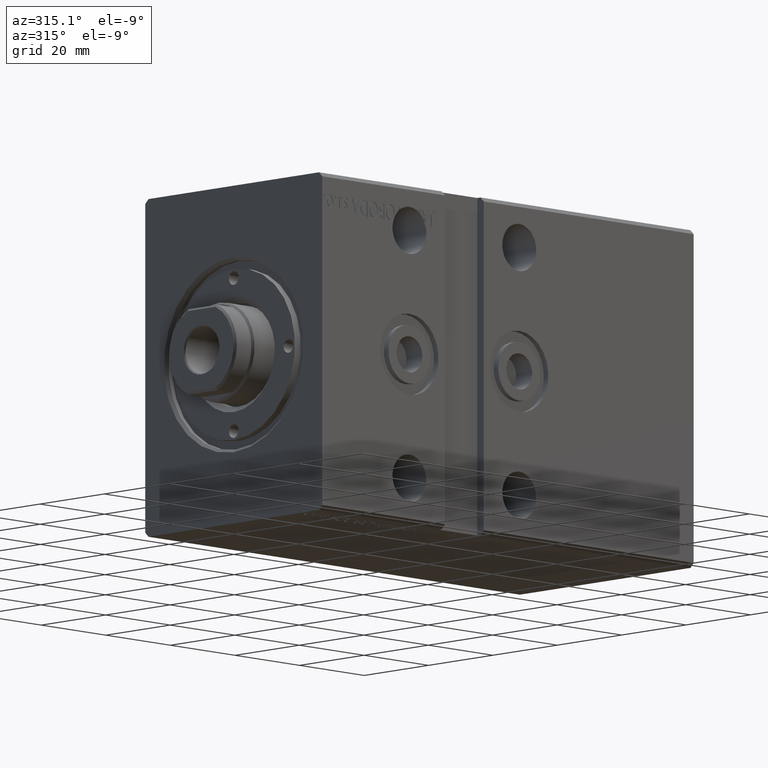
[diagram: clean part render]
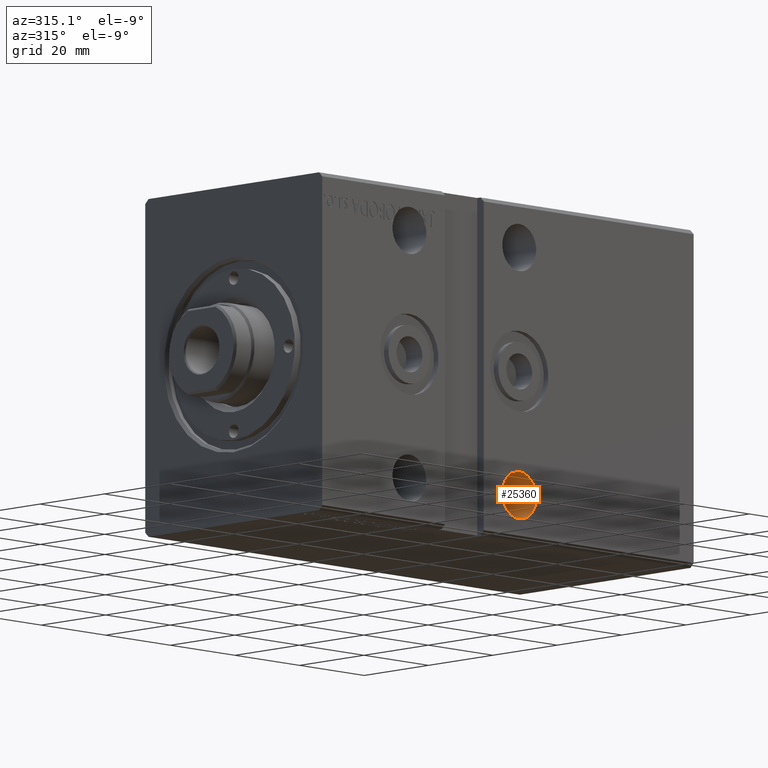
[diagram: same view with one face highlighted and labeled with its STEP entity id]
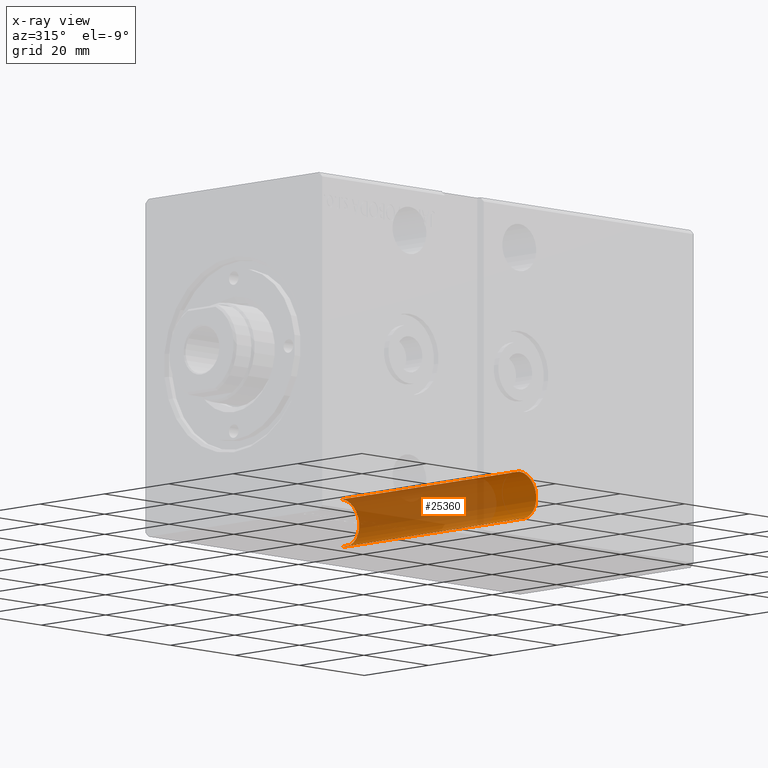
[diagram: x-ray of the same camera — body ghosted, the highlighted face saturated]
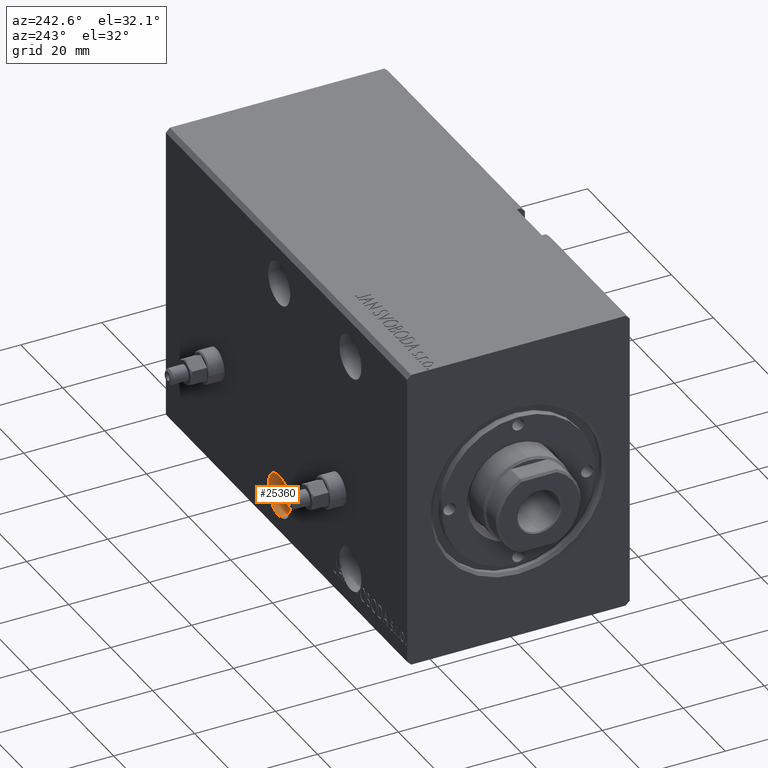
[diagram: same view with one face highlighted and labeled with its STEP entity id]
A machine part, auxiliary view. The second image highlights one B-rep face of the part: STEP entity #25360.
The next image is the same camera in x-ray: the body ghosted, the highlighted face saturated — about 77% of this face is hidden behind the body in this view.
A second angle (auxiliary view) of the same face is appended — the face is thin or edge-on in the first view.
In plain terms, the highlighted cylindrical surface (edge-blend (fillet) strip) has radius 5.25 mm, axis along (-0, -1, -0).
Its self-contained STEP definition (entity closure, byte-faithful):
#2926 = LINE ( 'NONE', #9265, #39934 ) ;
#4147 = EDGE_CURVE ( 'NONE', #26338, #28202, #17678, .T. ) ;
#4935 = DIRECTION ( 'NONE',  ( -0.000000000000000000, -1.000000000000000000, -5.507058653894626469E-17 ) ) ;
#5047 = DIRECTION ( 'NONE',  ( 0.000000000000000000, 0.000000000000000000, 1.000000000000000000 ) ) ;
#5855 = VERTEX_POINT ( 'NONE', #8342 ) ;
#7110 = EDGE_CURVE ( 'NONE', #26338, #5855, #31037, .T. ) ;
#8342 = CARTESIAN_POINT ( 'NONE',  ( 61.00000000000000711, 27.50000000000003197, -22.25000000000000355 ) ) ;
#8729 = CARTESIAN_POINT ( 'NONE',  ( 61.00000000000000711, 27.50000000000003197, -27.50000000000000000 ) ) ;
#9180 = EDGE_CURVE ( 'NONE', #5855, #10460, #2926, .T. ) ;
#9265 = CARTESIAN_POINT ( 'NONE',  ( 61.00000000000000711, 27.50000000000003197, -22.25000000000000355 ) ) ;
#10460 = VERTEX_POINT ( 'NONE', #21002 ) ;
#11895 = FACE_OUTER_BOUND ( 'NONE', #25651, .T. ) ;
#12860 = DIRECTION ( 'NONE',  ( 0.000000000000000000, 0.000000000000000000, -1.000000000000000000 ) ) ;
#13059 = CARTESIAN_POINT ( 'NONE',  ( 61.00000000000000711, 27.50000000000003197, -27.50000000000000000 ) ) ;
#13820 = ORIENTED_EDGE ( 'NONE', *, *, #7110, .F. ) ;
#15568 = AXIS2_PLACEMENT_3D ( 'NONE', #13059, #16843, #12860 ) ;
#16843 = DIRECTION ( 'NONE',  ( 0.000000000000000000, -1.000000000000000000, -5.507058653894625853E-17 ) ) ;
#17678 = LINE ( 'NONE', #37082, #33010 ) ;
#21002 = CARTESIAN_POINT ( 'NONE',  ( 61.00000000000000711, -27.50000000000000355, -22.25000000000000711 ) ) ;
#21082 = CARTESIAN_POINT ( 'NONE',  ( 61.00000000000000711, -27.50000000000000355, -27.50000000000000355 ) ) ;
#22900 = AXIS2_PLACEMENT_3D ( 'NONE', #21082, #33711, #5047 ) ;
#24344 = CYLINDRICAL_SURFACE ( 'NONE', #36066, 5.249999999999994671 ) ;
#24670 = DIRECTION ( 'NONE',  ( -0.000000000000000000, -1.000000000000000000, -5.507058653894626469E-17 ) ) ;
#25360 = ADVANCED_FACE ( 'NONE', ( #11895 ), #24344, .F. ) ;
#25651 = EDGE_LOOP ( 'NONE', ( #27029, #13820, #27273, #35660 ) ) ;
#26338 = VERTEX_POINT ( 'NONE', #27514 ) ;
#27029 = ORIENTED_EDGE ( 'NONE', *, *, #9180, .F. ) ;
#27273 = ORIENTED_EDGE ( 'NONE', *, *, #4147, .T. ) ;
#27514 = CARTESIAN_POINT ( 'NONE',  ( 61.00000000000000711, 27.50000000000003197, -32.74999999999999289 ) ) ;
#27598 = DIRECTION ( 'NONE',  ( -0.000000000000000000, -1.000000000000000000, -5.507058653894626469E-17 ) ) ;
#28202 = VERTEX_POINT ( 'NONE', #40104 ) ;
#31037 = CIRCLE ( 'NONE', #15568, 5.249999999999994671 ) ;
#32304 = EDGE_CURVE ( 'NONE', #10460, #28202, #41088, .T. ) ;
#33010 = VECTOR ( 'NONE', #27598, 1000.000000000000000 ) ;
#33711 = DIRECTION ( 'NONE',  ( -0.000000000000000000, 1.000000000000000000, 4.752667057470705491E-17 ) ) ;
#35660 = ORIENTED_EDGE ( 'NONE', *, *, #32304, .F. ) ;
#36066 = AXIS2_PLACEMENT_3D ( 'NONE', #8729, #4935, #37197 ) ;
#37082 = CARTESIAN_POINT ( 'NONE',  ( 61.00000000000000711, 27.50000000000003197, -32.74999999999999289 ) ) ;
#37197 = DIRECTION ( 'NONE',  ( 0.000000000000000000, 0.000000000000000000, -1.000000000000000000 ) ) ;
#39934 = VECTOR ( 'NONE', #24670, 1000.000000000000000 ) ;
#40104 = CARTESIAN_POINT ( 'NONE',  ( 61.00000000000000711, -27.50000000000000355, -32.75000000000000000 ) ) ;
#41088 = CIRCLE ( 'NONE', #22900, 5.249999999999997335 ) ;